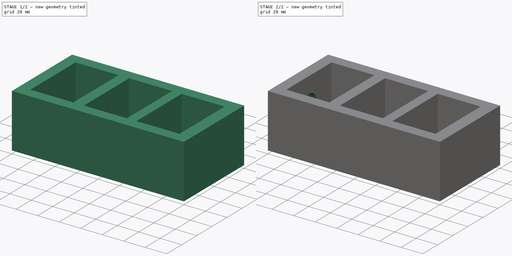
[diagram: build sequence overview — one tinted view per stage of 2, left to right]
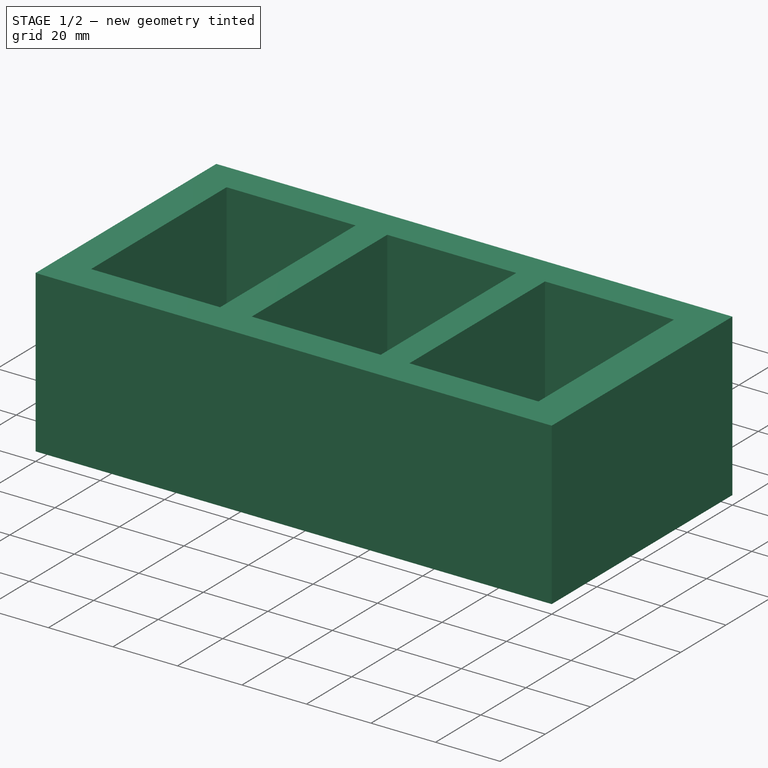
[diagram: stage 1 of 2 — iso view after this stage's code; geometry added in this stage tinted green]
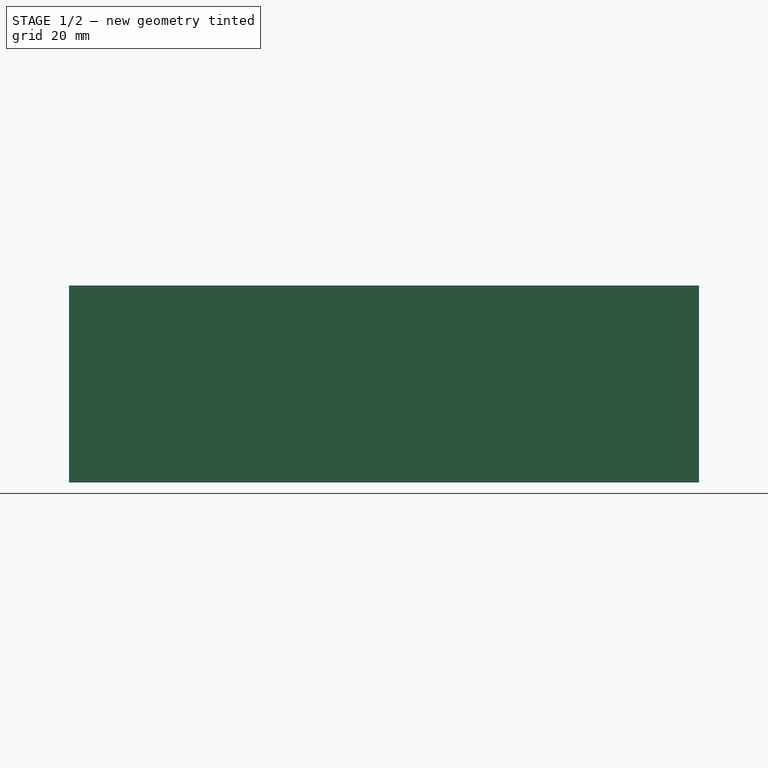
[diagram: stage 1 of 2 — front view after this stage's code; geometry added in this stage tinted green]
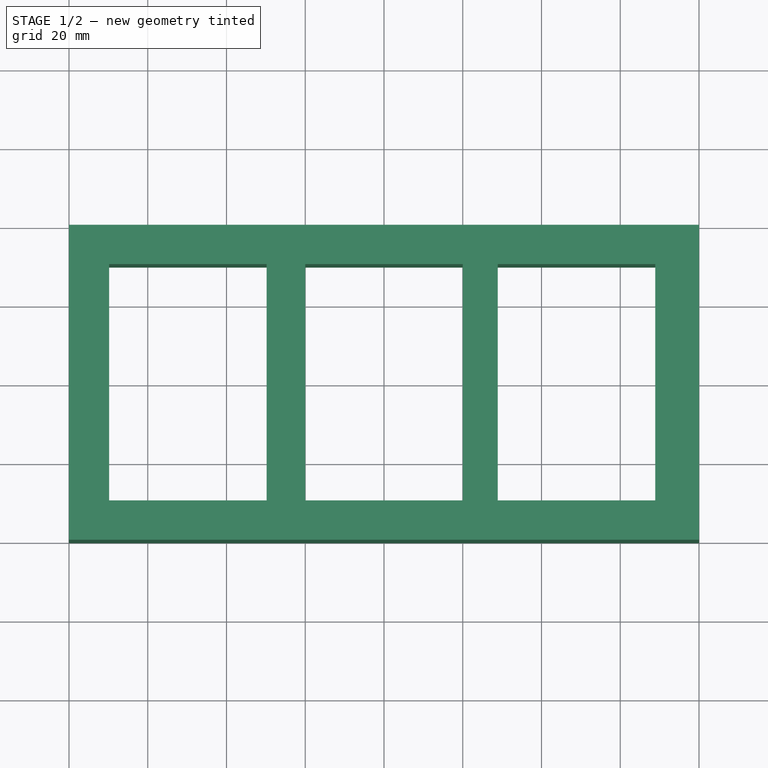
[diagram: stage 1 of 2 — top view after this stage's code; geometry added in this stage tinted green]
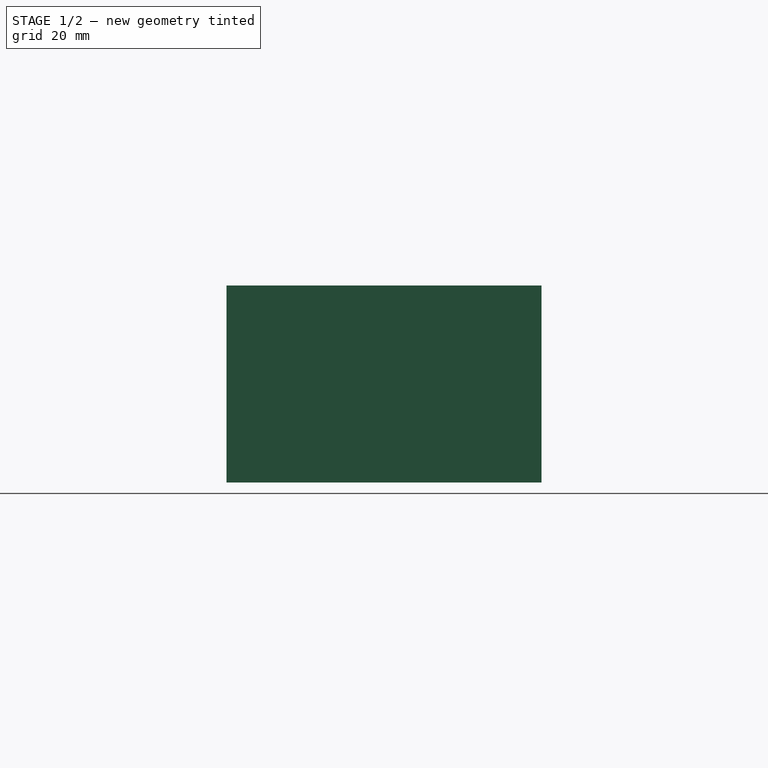
[diagram: stage 1 of 2 — right view after this stage's code; geometry added in this stage tinted green]
FCSTD DOCUMENT  (FreeCAD 0.21R33694 (Git))
Label: npatris_exercici3
License: All rights reserved
LicenseURL: https://en.wikipedia.org/wiki/All_rights_reserved
objects: Sketcher::SketchObject×2, PartDesign::Pad×1, PartDesign::Pocket×1, PartDesign::Body×1
note: 7 computed .brp shape members not serialized (recipe doc carries the construction recipe); baked Part::Feature solids carry a one-line shape summary decoded from their .brp

FEATURE [Sketcher::SketchObject] Sketch
  FullyConstrained = false
  MapMode = 5
  Support = -> [XY_Plane]
  sketch-geometry (16):
    g0: LineSegment StartX=-80 StartY=40 StartZ=0 EndX=-80 EndY=-40 EndZ=0
    g1: LineSegment StartX=80 StartY=-40 StartZ=0 EndX=-80 EndY=-40 EndZ=0
    g2: LineSegment StartX=80 StartY=40 StartZ=0 EndX=80 EndY=-40 EndZ=0
    g3: LineSegment StartX=80 StartY=40 StartZ=0 EndX=-80 EndY=40 EndZ=0
    g4: LineSegment StartX=-69.8037 StartY=30 StartZ=0 EndX=-69.8037 EndY=-30 EndZ=0
    g5: LineSegment StartX=-29.8037 StartY=30 StartZ=0 EndX=-69.8037 EndY=30 EndZ=0
    g6: LineSegment StartX=-29.8037 StartY=30 StartZ=0 EndX=-29.8037 EndY=-30 EndZ=0
    g7: LineSegment StartX=-69.8037 StartY=-30 StartZ=0 EndX=-29.8037 EndY=-30 EndZ=0
    g8: LineSegment StartX=-20 StartY=30 StartZ=0 EndX=-20 EndY=-30 EndZ=0
    g9: LineSegment StartX=20 StartY=-30 StartZ=0 EndX=-20 EndY=-30 EndZ=0
    g10: LineSegment StartX=20 StartY=30 StartZ=0 EndX=20 EndY=-30 EndZ=0
    g11: LineSegment StartX=20 StartY=30 StartZ=0 EndX=-20 EndY=30 EndZ=0
    g12: LineSegment StartX=28.8924 StartY=30 StartZ=0 EndX=28.8924 EndY=-30 EndZ=0
    g13: LineSegment StartX=68.8924 StartY=-30 StartZ=0 EndX=28.8924 EndY=-30 EndZ=0
    g14: LineSegment StartX=68.8924 StartY=30 StartZ=0 EndX=68.8924 EndY=-30 EndZ=0
    g15: LineSegment StartX=28.8924 StartY=30 StartZ=0 EndX=68.8924 EndY=30 EndZ=0
  constraints (38):
    c: Coincident(g3,g0)
    c: Coincident(g2,g3)
    c: Coincident(g1,g2)
    c: Coincident(g0,g1)
    c: Symmetric(g2,g0,g-2)
    c: Symmetric(g0,g1,g-2)
    c: Symmetric(g0,g0,g-1)
    c: DistanceX(g0,g2) = 160
    c: DistanceY(g0,g0) = 80
    c: Vertical(g4)
    c: Horizontal(g7)
    c: Horizontal(g13)
    c: Vertical(g14)
    c: Horizontal(g15)
    c: Horizontal(g5)
    c: Coincident(g12,g15)
    c: Coincident(g15,g14)
    c: Coincident(g13,g14)
    c: Coincident(g13,g12)
    c: Coincident(g10,g11)
    c: Coincident(g11,g8)
    c: Coincident(g8,g9)
    c: Coincident(g9,g10)
    c: Coincident(g6,g7)
    c: Coincident(g6,g5)
    c: Coincident(g5,g4)
    c: Coincident(g4,g7)
    c: Symmetric(g10,g8,g-2)
    c: Symmetric(g9,g8,g-2)
    c: Symmetric(g8,g8,g-1)
    c: Equal(g10,g14)
    c: Equal(g4,g8)
    c: DistanceX(g12,g14) = 40
    c: Equal(g15,g11)
    c: Equal(g5,g11)
    c: Symmetric(g12,g12,g-1)
    c: Symmetric(g5,g6,g-1)
    c: DistanceY(g4,g4) = 60
FEATURE [PartDesign::Pad] Pad
  Direction = (0,0,1)
  Length = 50
  Length2 = 10
  Profile = -> Sketch
  ReferenceAxis = -> Sketch [N_Axis]
  Type = 0
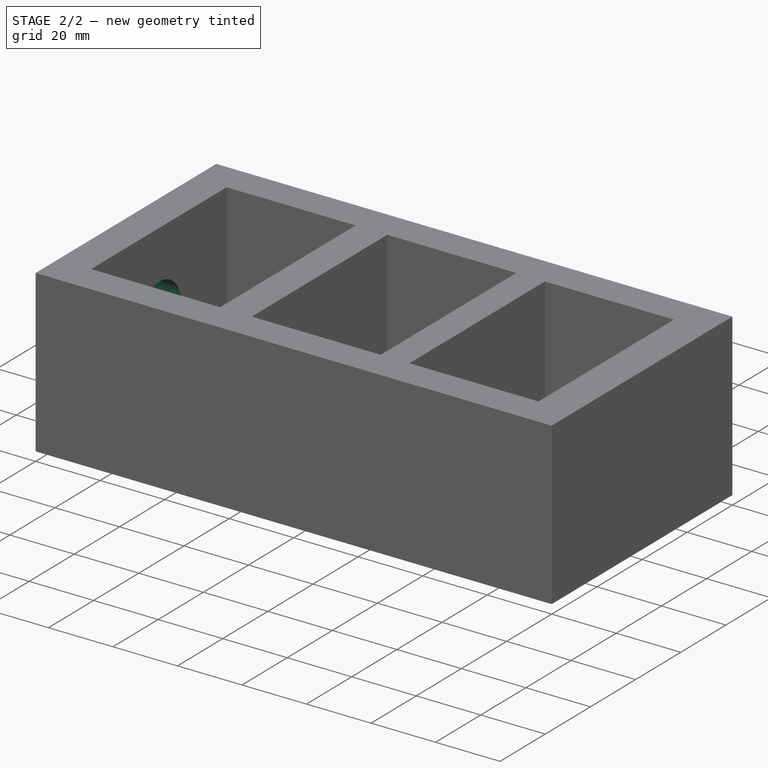
[diagram: stage 2 of 2 — iso view after this stage's code; geometry added in this stage tinted green]
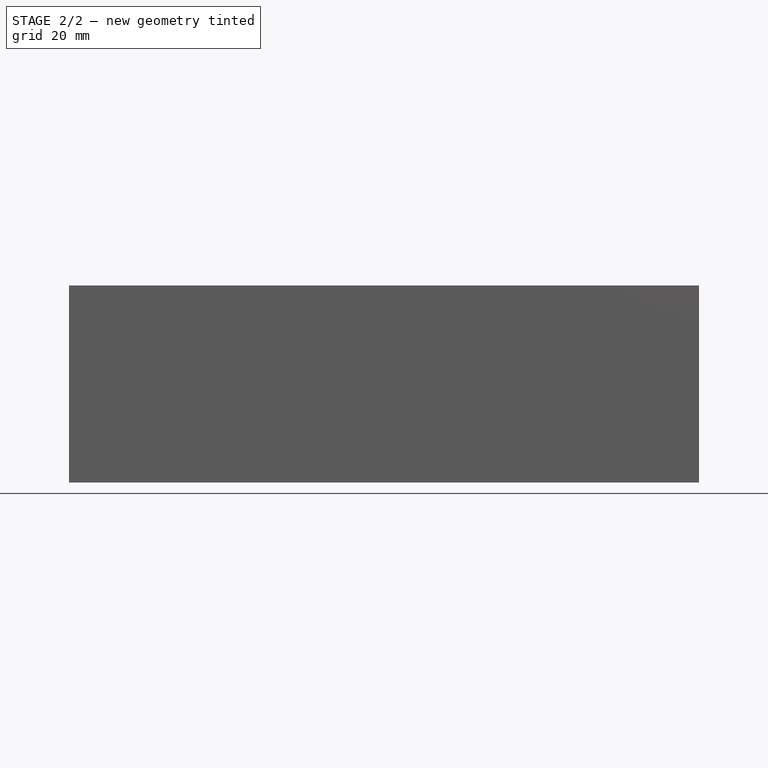
[diagram: stage 2 of 2 — front view after this stage's code; geometry added in this stage tinted green]
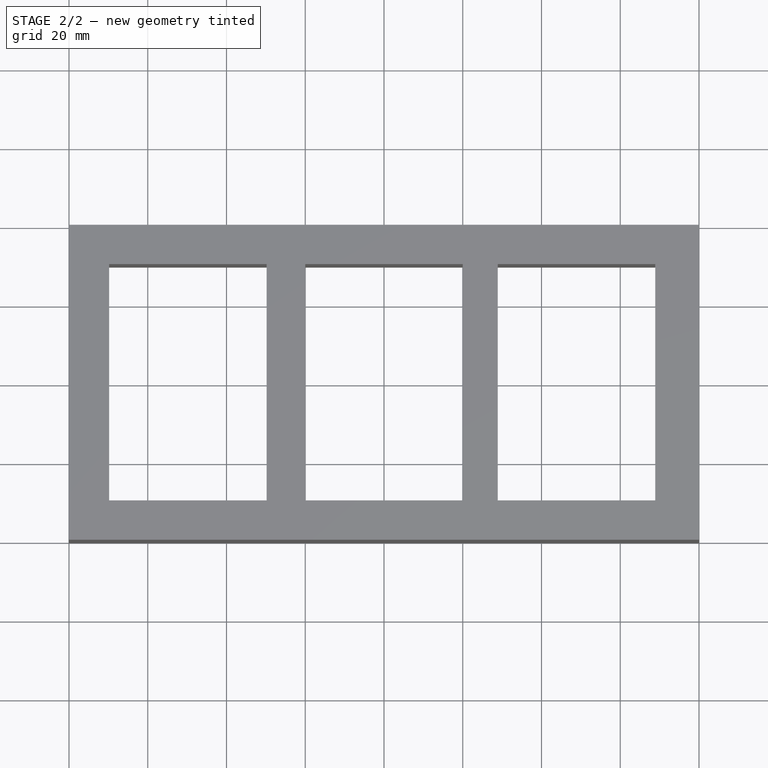
[diagram: stage 2 of 2 — top view after this stage's code; geometry added in this stage tinted green]
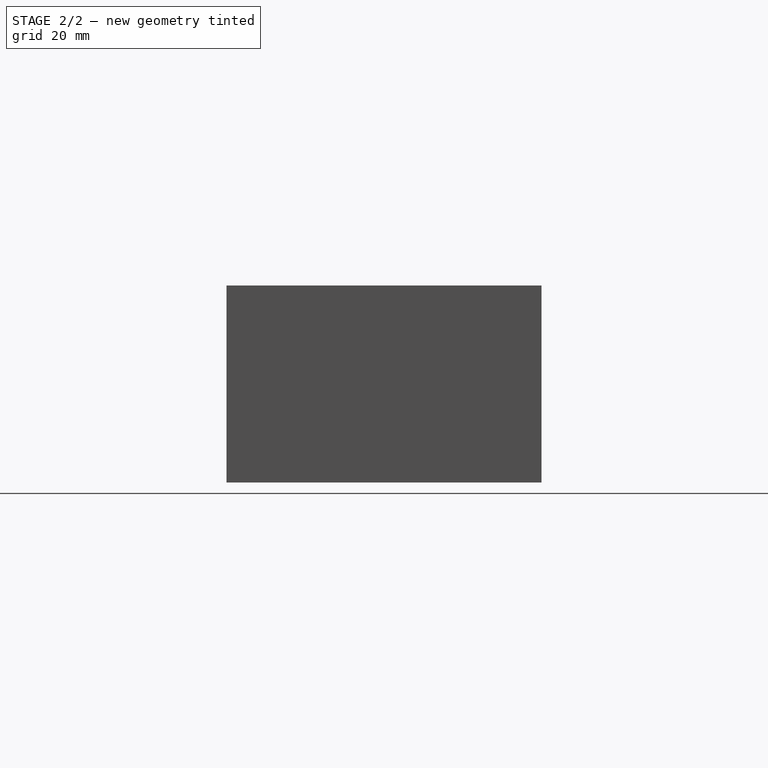
[diagram: stage 2 of 2 — right view after this stage's code; geometry added in this stage tinted green]
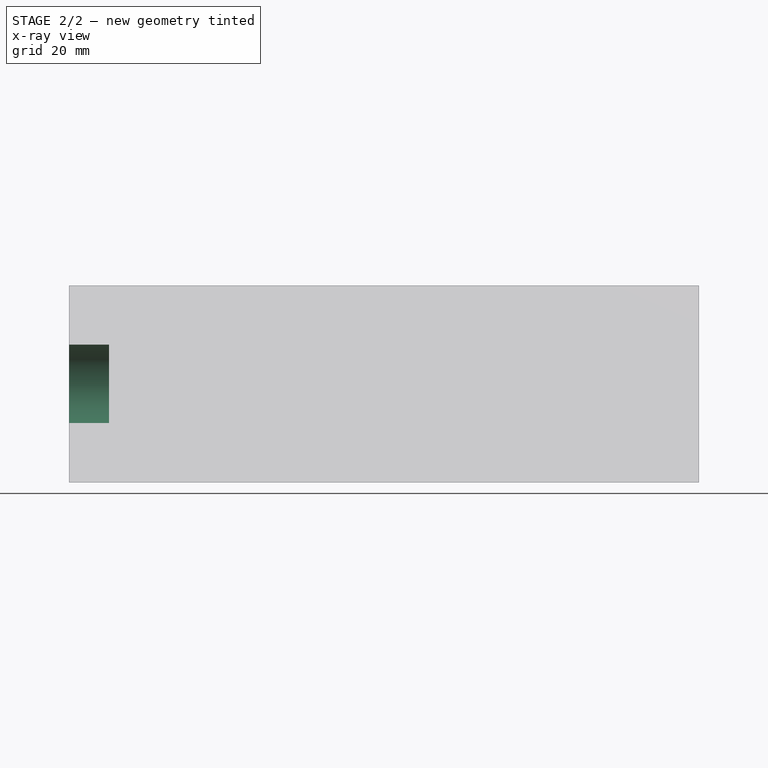
[diagram: stage 2 of 2 — x-ray composite at the front view; earlier geometry ghosted, this stage's added geometry solid]
FEATURE [Sketcher::SketchObject] Sketch001
  FullyConstrained = true
  MapMode = 5
  Placement = pos=(-80,0,0) rot=(0.57735,-0.57735,-0.57735;2.0944rad)
  Support = -> [Pad]
  sketch-geometry (1):
    g0: Circle CenterX=0 CenterY=25 CenterZ=0 NormalX=0 NormalY=0 NormalZ=1 AngleXU=0 Radius=10
  constraints (3):
    c: PointOnObject(g0,g-2)
    c: Radius(g0) = 10
    c: DistanceY(g-1,g0) = 25
FEATURE [PartDesign::Pocket] Pocket
  BaseFeature = -> Pad
  Direction = (1,0,0)
  Length = 11
  Length2 = 5
  Profile = -> Sketch001
  ReferenceAxis = -> Sketch001 [N_Axis]
  Type = 0
FEATURE [PartDesign::Body] Body
  Group = -> [Sketch,Pad,Sketch001,Pocket]
  Origin = -> Origin
  Tip = -> Pocket
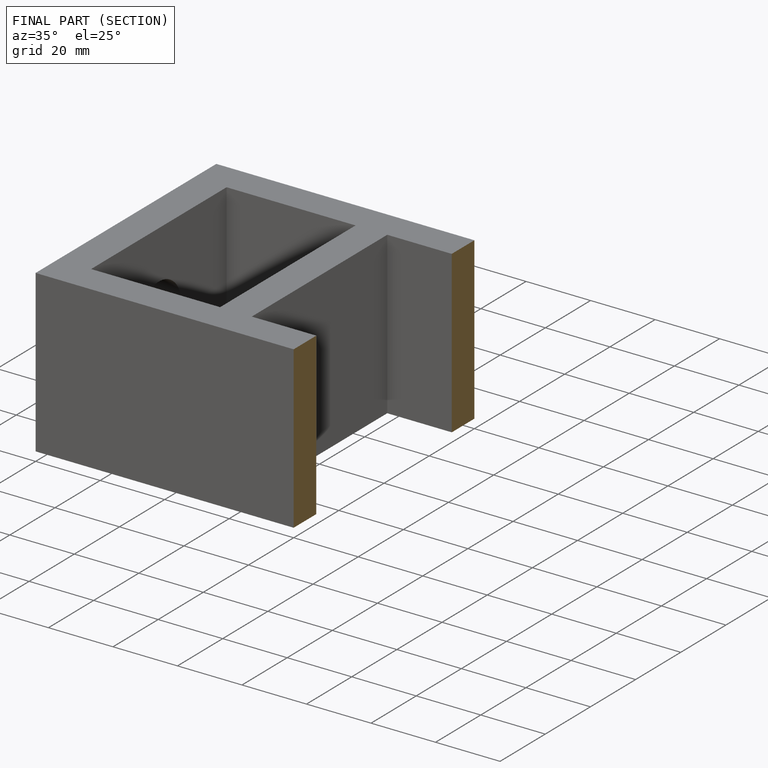
[diagram: finished part — half-section view (interior)]
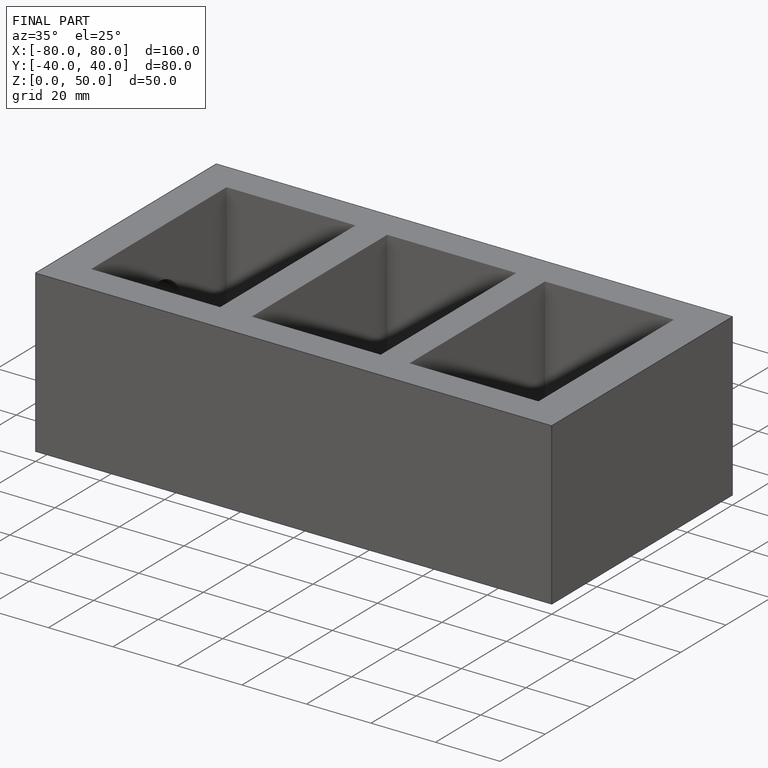
[diagram: finished part — iso view with bounding-box wireframe]
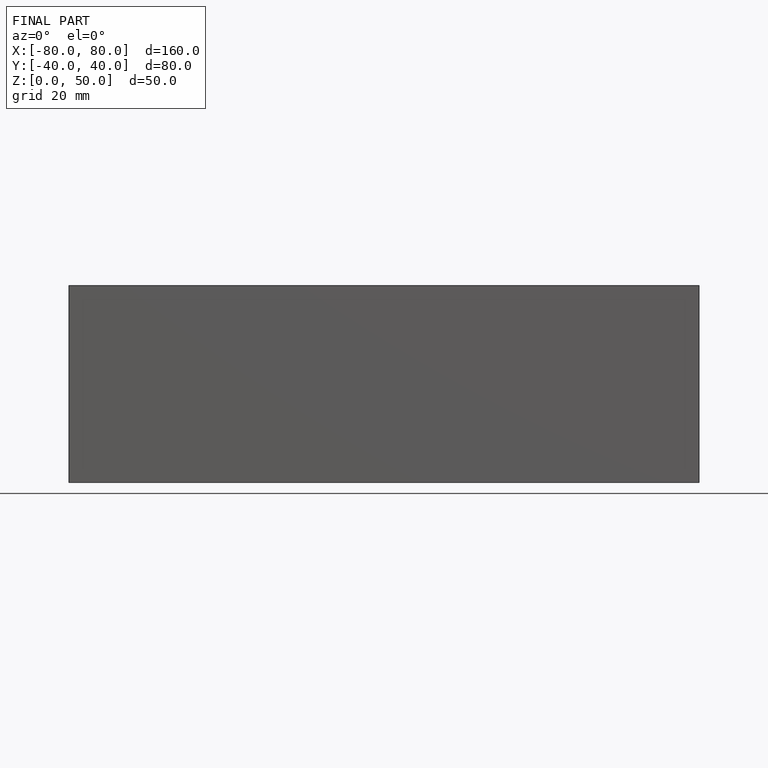
[diagram: finished part — front view with bounding-box wireframe]
